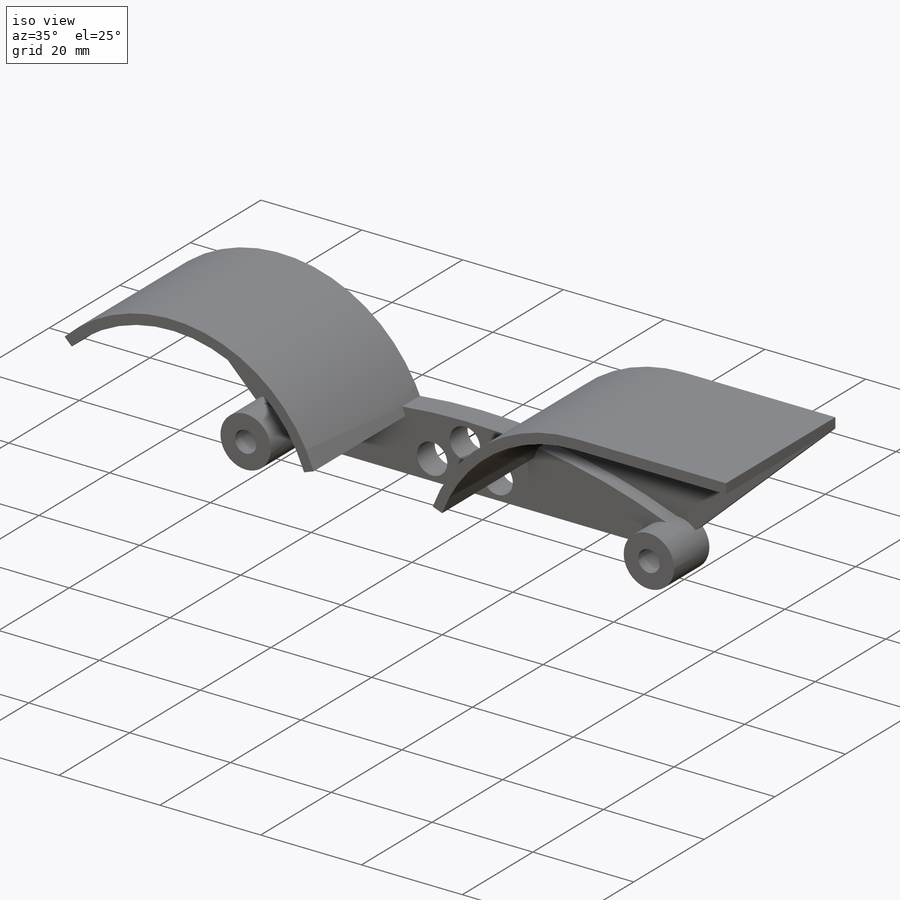
[diagram: iso view]
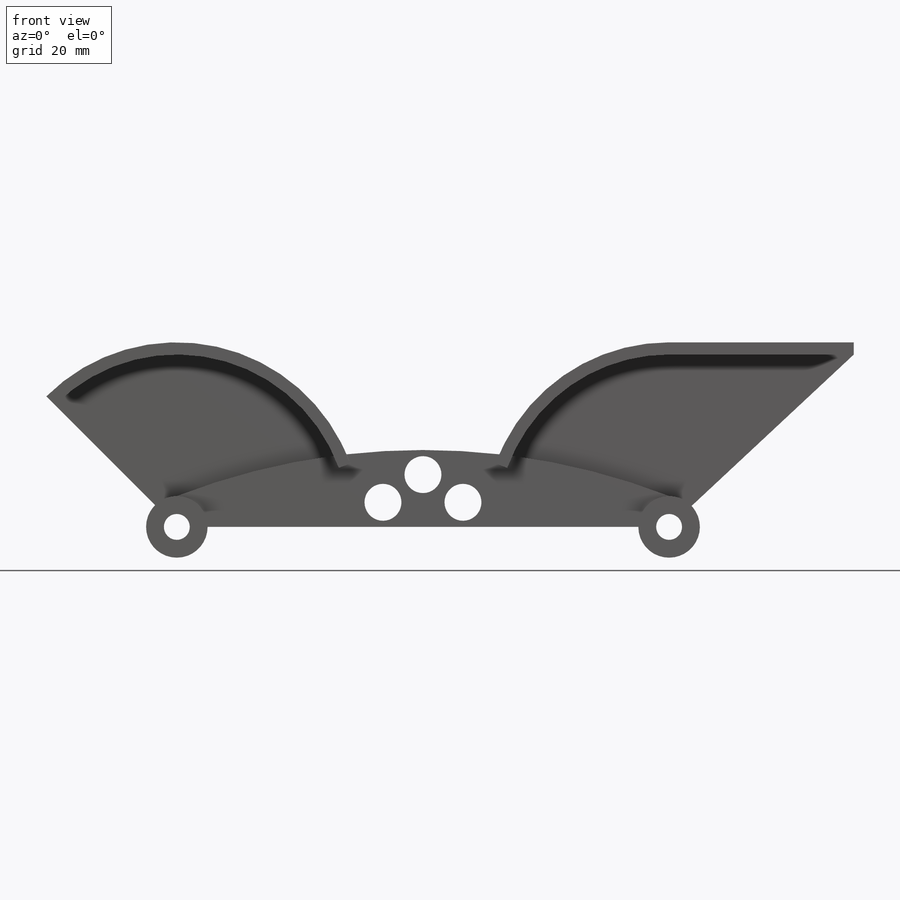
[diagram: front view]
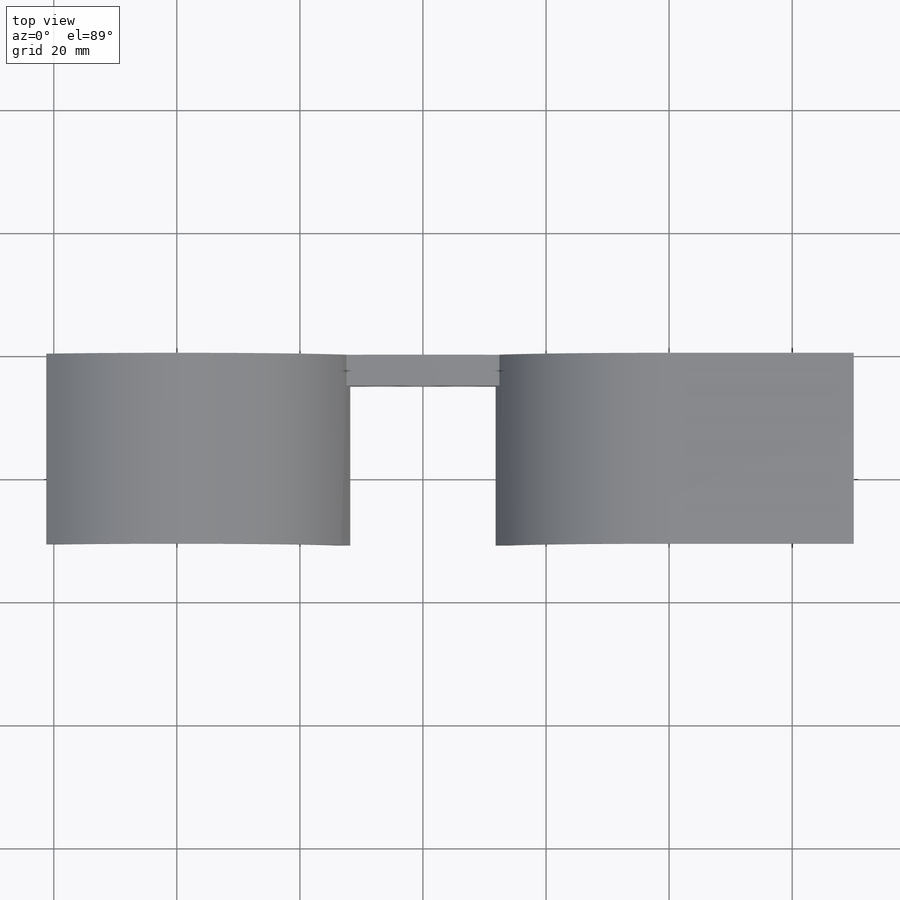
[diagram: top view]
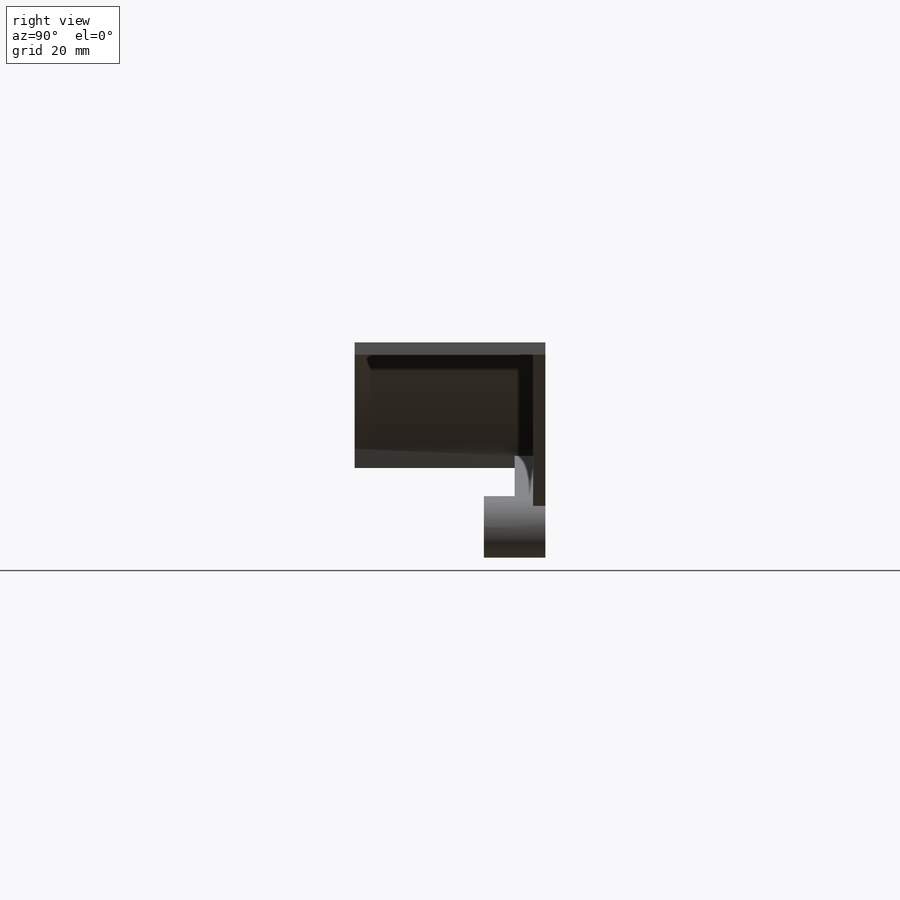
[diagram: right view]
SOLIDWORKS PART (.sldprt)
format: sldprt  version: not decoded by parser v0  size: 295,424 bytes
history: native  units: mm
features: sketch x5, extrude x4, material x1, cut_extrude x1 (+12 scaffold rows collapsed)
feature tree (23):
  scaffold x12  (default folders/planes/origin — collapsed)
  material  "Material <not specified>"
  sketch  "Sketch2"  dims[D3=4.5mm D4=4.5mm D5=10.0mm D6=10.0mm D1=80.0mm D2=25.0mm]
  extrude  "Boss-Extrude1"  Depth=5mm
  sketch  "Sketch3"
  extrude  "Boss-Extrude2"  Depth=5mm
  sketch  "Sketch4"  dims[c1.D1=56.0mm c1.D2=56.0mm c1.D5=~60.700074mm c1.D6=~61.581555mm c2.D1=56.0mm c2.D2=56.0mm c2.D3=~70.230744mm c2.D4=~62.321871mm c3.D3=28.0mm c4.D3=145.0deg c4.D4=28.0mm c5.D4=90.0deg c5.D5=2.0mm c5.D6=2.0mm c5.D3=2.0mm c6.D4=2.0mm c6.D5=~24.228564mm c7.D5=45.0deg c7.D6=30.0mm c7.D7=2.0mm]
  extrude  "Boss-Extrude3"  Depth=2mm
  sketch  "Sketch5"  dims[c1.D1=~31.770667mm c1.D2=~43.231951mm c2.D1=2.0mm c2.D2=2.0mm c2.D3=30.0mm c3.D3=20.0deg c3.D4=~28.12066mm c4.D4=20.0deg]
  extrude  "Boss-Extrude5"  Depth=29mm
  sketch  "Sketch6"  dims[D1=4.2mm D2=4.2mm D3=6.0mm D5=6.0mm D4=8.5mm D6=4.0mm D7=6.5mm]
  cut_extrude  "Cut-Extrude1"  [1 undecoded]
decode coverage: 8 of 10 modeling features carry decoded parameters
note: ~ marks probable driven/reference dimensions
note: 1 parameter value undecoded
note: suppression state not decoded; provenance and decode notes live in map.json
